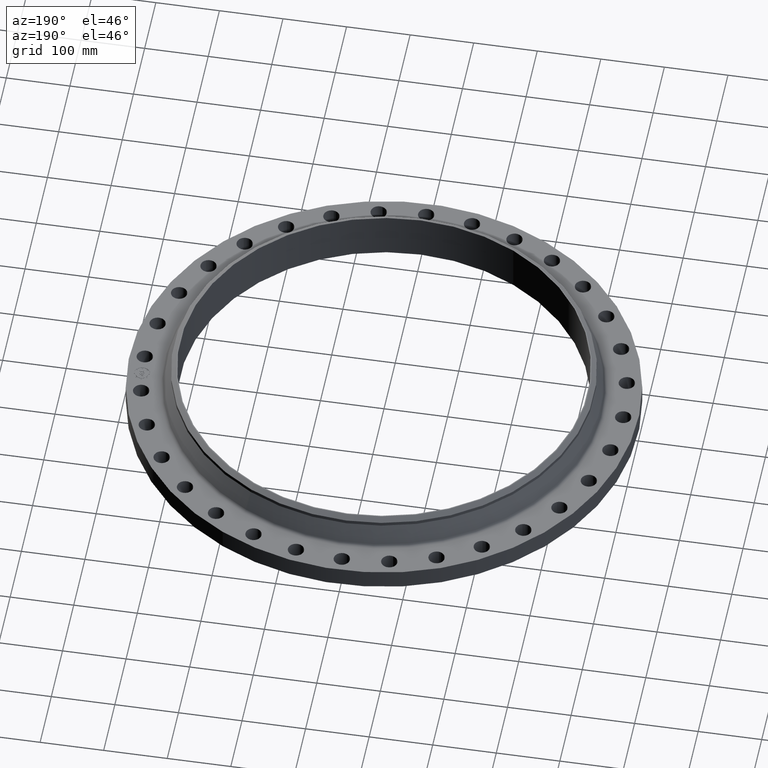
[diagram: clean part render]
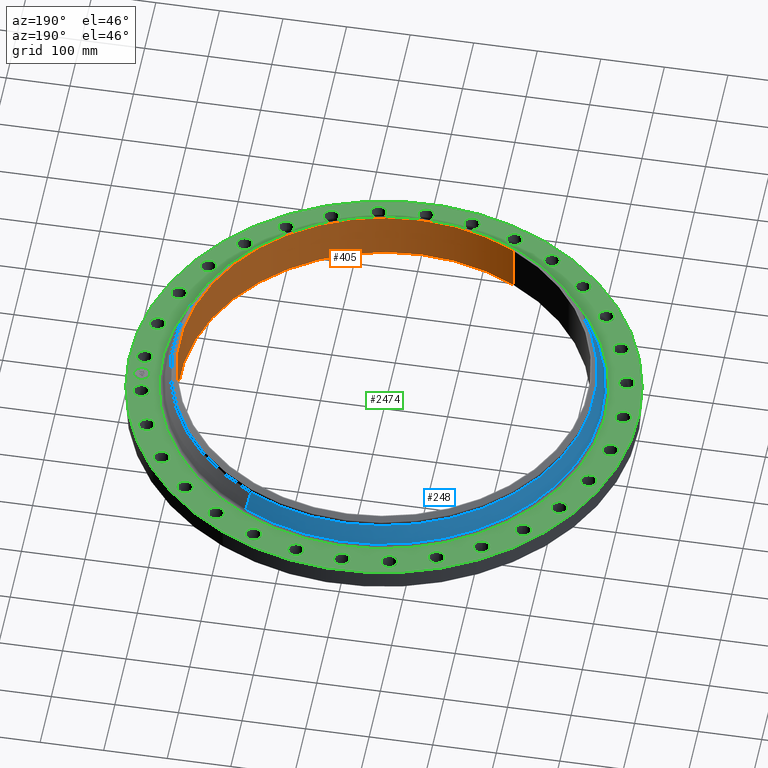
[diagram: same view with three faces highlighted in distinct colors, each labeled with its STEP entity id]
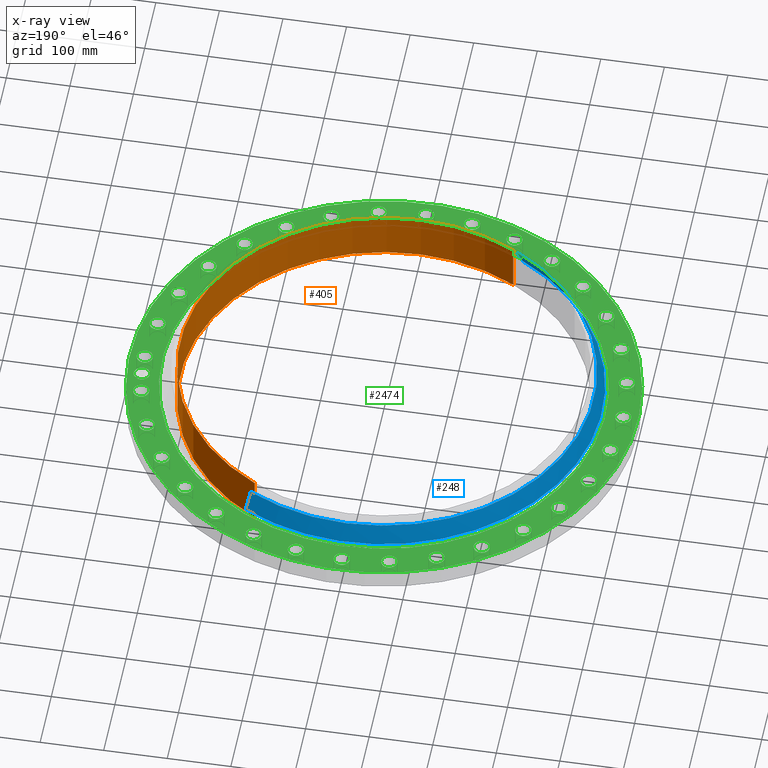
[diagram: x-ray of the same camera — body ghosted, the three highlighted faces saturated]
A machine part, auxiliary view with three faces highlighted in distinct colors.
The next image is the same camera in x-ray (body ghosted, the three faces saturated) — at least one of them is partly hidden behind the body in this view.
Their STEP definitions:

[orange] entity #405 — the highlighted cylindrical surface (partial cylindrical patch) has radius 320.675 mm, axis along (0, 0, -1).
#355=AXIS2_PLACEMENT_3D('Circle Axis2P3D',#353,#354,$) ;
#366=AXIS2_PLACEMENT_3D('Cylinder Axis2P3D',#363,#364,#365) ;
#396=AXIS2_PLACEMENT_3D('Circle Axis2P3D',#394,#395,$) ;
#348=CARTESIAN_POINT('Vertex',(-6.0527474249,-11.0794798439,3.00000000001)) ;
#350=CARTESIAN_POINT('Vertex',(6.0527474249,11.0794798439,3.00000000001)) ;
#353=CARTESIAN_POINT('Axis2P3D Location',(0.,-1.39870617276E-015,3.00000000001)) ;
#363=CARTESIAN_POINT('Axis2P3D Location',(0.,0.,1.55000000001)) ;
#368=CARTESIAN_POINT('Line Origine',(-6.0527474249,-11.0794798439,1.50000000001)) ;
#372=CARTESIAN_POINT('Vertex',(-6.0527474249,-11.0794798439,-2.12603338259E-014)) ;
#379=CARTESIAN_POINT('Vertex',(6.0527474249,11.0794798439,-2.12603338259E-014)) ;
#382=CARTESIAN_POINT('Line Origine',(6.0527474249,11.0794798439,1.50000000001)) ;
#394=CARTESIAN_POINT('Axis2P3D Location',(0.,0.,-2.12603338259E-014)) ;
#354=DIRECTION('Axis2P3D Direction',(0.,-0.,-0.0393700787402)) ;
#364=DIRECTION('Axis2P3D Direction',(0.,0.,-0.0393700787402)) ;
#365=DIRECTION('Axis2P3D XDirection',(0.0188750212049,0.0345504945626,0.)) ;
#369=DIRECTION('Vector Direction',(0.,0.,-0.0393700787402)) ;
#383=DIRECTION('Vector Direction',(0.,0.,-0.0393700787402)) ;
#395=DIRECTION('Axis2P3D Direction',(0.,0.,-0.0393700787402)) ;
#370=VECTOR('Line Direction',#369,0.0393700787402) ;
#384=VECTOR('Line Direction',#383,0.0393700787402) ;
#400=ORIENTED_EDGE('',*,*,#386,.T.) ;
#401=ORIENTED_EDGE('',*,*,#398,.T.) ;
#402=ORIENTED_EDGE('',*,*,#374,.F.) ;
#403=ORIENTED_EDGE('',*,*,#357,.F.) ;
#405=ADVANCED_FACE('PartBody',(#404),#367,.F.) ;
#356=CIRCLE('generated circle',#355,12.6250000001) ;
#397=CIRCLE('generated circle',#396,12.6250000001) ;
#367=CYLINDRICAL_SURFACE('generated cylinder',#366,12.6250000001) ;
#357=EDGE_CURVE('',#351,#349,#356,.T.) ;
#374=EDGE_CURVE('',#349,#373,#371,.T.) ;
#386=EDGE_CURVE('',#351,#380,#385,.T.) ;
#398=EDGE_CURVE('',#380,#373,#397,.T.) ;
#399=EDGE_LOOP('',(#400,#401,#402,#403)) ;
#404=FACE_OUTER_BOUND('',#399,.T.) ;
#371=LINE('Line',#368,#370) ;
#385=LINE('Line',#382,#384) ;
#349=VERTEX_POINT('',#348) ;
#351=VERTEX_POINT('',#350) ;
#373=VERTEX_POINT('',#372) ;
#380=VERTEX_POINT('',#379) ;

[blue] entity #248 — the highlighted conical surface has half-angle 23.917 deg.
#196=AXIS2_PLACEMENT_3D('Circle Axis2P3D',#194,#195,$) ;
#209=AXIS2_PLACEMENT_3D('Cone Axis2P3D',#206,#207,#208) ;
#239=AXIS2_PLACEMENT_3D('Circle Axis2P3D',#237,#238,$) ;
#167=CARTESIAN_POINT('Vertex',(6.47180196511,11.8465540345,1.39864782273)) ;
#174=CARTESIAN_POINT('Vertex',(-6.47180196511,-11.8465540345,1.39864782273)) ;
#194=CARTESIAN_POINT('Axis2P3D Location',(0.,0.,1.39864782273)) ;
#206=CARTESIAN_POINT('Axis2P3D Location',(0.,0.,2.52398984383)) ;
#211=CARTESIAN_POINT('Line Origine',(6.35216698349,11.6275636696,1.96131883328)) ;
#215=CARTESIAN_POINT('Vertex',(6.23253200188,11.4085733046,2.52398984383)) ;
#222=CARTESIAN_POINT('Vertex',(-6.23253200188,-11.4085733046,2.52398984383)) ;
#225=CARTESIAN_POINT('Line Origine',(-6.35216698349,-11.6275636696,1.96131883328)) ;
#237=CARTESIAN_POINT('Axis2P3D Location',(0.,0.,2.52398984383)) ;
#195=DIRECTION('Axis2P3D Direction',(0.,0.,-0.0393700787402)) ;
#207=DIRECTION('Axis2P3D Direction',(0.,0.,-0.0393700787402)) ;
#208=DIRECTION('Axis2P3D XDirection',(-0.0188750212049,-0.0345504945626,0.)) ;
#212=DIRECTION('Vector Direction',(0.00765209798064,0.0140070713989,-0.0359895880405)) ;
#226=DIRECTION('Vector Direction',(-0.00765209798064,-0.0140070713989,-0.0359895880405)) ;
#238=DIRECTION('Axis2P3D Direction',(0.,0.,-0.0393700787402)) ;
#213=VECTOR('Line Direction',#212,0.0393700787402) ;
#227=VECTOR('Line Direction',#226,0.0393700787402) ;
#243=ORIENTED_EDGE('',*,*,#198,.F.) ;
#244=ORIENTED_EDGE('',*,*,#229,.T.) ;
#245=ORIENTED_EDGE('',*,*,#241,.T.) ;
#246=ORIENTED_EDGE('',*,*,#217,.F.) ;
#248=ADVANCED_FACE('PartBody',(#247),#210,.T.) ;
#197=CIRCLE('generated circle',#196,13.499076382) ;
#240=CIRCLE('generated circle',#239,13.0000000001) ;
#210=CONICAL_SURFACE('Cone',#209,13.0000000001,0.417425885319) ;
#198=EDGE_CURVE('',#175,#168,#197,.T.) ;
#217=EDGE_CURVE('',#168,#216,#214,.F.) ;
#229=EDGE_CURVE('',#175,#223,#228,.F.) ;
#241=EDGE_CURVE('',#223,#216,#240,.T.) ;
#242=EDGE_LOOP('',(#243,#244,#245,#246)) ;
#247=FACE_OUTER_BOUND('',#242,.T.) ;
#214=LINE('Line',#211,#213) ;
#228=LINE('Line',#225,#227) ;
#168=VERTEX_POINT('',#167) ;
#175=VERTEX_POINT('',#174) ;
#216=VERTEX_POINT('',#215) ;
#223=VERTEX_POINT('',#222) ;

[green] entity #2474 — the highlighted planar face has unit normal (0, 0, -1).
#65=AXIS2_PLACEMENT_3D('Circle Axis2P3D',#63,#64,$) ;
#82=AXIS2_PLACEMENT_3D('Circle Axis2P3D',#80,#81,$) ;
#115=AXIS2_PLACEMENT_3D('Circle Axis2P3D',#113,#114,$) ;
#139=AXIS2_PLACEMENT_3D('Circle Axis2P3D',#137,#138,$) ;
#156=AXIS2_PLACEMENT_3D('Circle Axis2P3D',#154,#155,$) ;
#191=AXIS2_PLACEMENT_3D('Circle Axis2P3D',#189,#190,$) ;
#1003=AXIS2_PLACEMENT_3D('Circle Axis2P3D',#1001,#1002,$) ;
#1015=AXIS2_PLACEMENT_3D('Circle Axis2P3D',#1013,#1014,$) ;
#1046=AXIS2_PLACEMENT_3D('Circle Axis2P3D',#1044,#1045,$) ;
#1058=AXIS2_PLACEMENT_3D('Circle Axis2P3D',#1056,#1057,$) ;
#1089=AXIS2_PLACEMENT_3D('Circle Axis2P3D',#1087,#1088,$) ;
#1101=AXIS2_PLACEMENT_3D('Circle Axis2P3D',#1099,#1100,$) ;
#1132=AXIS2_PLACEMENT_3D('Circle Axis2P3D',#1130,#1131,$) ;
#1144=AXIS2_PLACEMENT_3D('Circle Axis2P3D',#1142,#1143,$) ;
#1175=AXIS2_PLACEMENT_3D('Circle Axis2P3D',#1173,#1174,$) ;
#1187=AXIS2_PLACEMENT_3D('Circle Axis2P3D',#1185,#1186,$) ;
#1218=AXIS2_PLACEMENT_3D('Circle Axis2P3D',#1216,#1217,$) ;
#1230=AXIS2_PLACEMENT_3D('Circle Axis2P3D',#1228,#1229,$) ;
#1261=AXIS2_PLACEMENT_3D('Circle Axis2P3D',#1259,#1260,$) ;
#1273=AXIS2_PLACEMENT_3D('Circle Axis2P3D',#1271,#1272,$) ;
#1304=AXIS2_PLACEMENT_3D('Circle Axis2P3D',#1302,#1303,$) ;
#1316=AXIS2_PLACEMENT_3D('Circle Axis2P3D',#1314,#1315,$) ;
#1347=AXIS2_PLACEMENT_3D('Circle Axis2P3D',#1345,#1346,$) ;
#1359=AXIS2_PLACEMENT_3D('Circle Axis2P3D',#1357,#1358,$) ;
#1390=AXIS2_PLACEMENT_3D('Circle Axis2P3D',#1388,#1389,$) ;
#1402=AXIS2_PLACEMENT_3D('Circle Axis2P3D',#1400,#1401,$) ;
#1433=AXIS2_PLACEMENT_3D('Circle Axis2P3D',#1431,#1432,$) ;
#1445=AXIS2_PLACEMENT_3D('Circle Axis2P3D',#1443,#1444,$) ;
#1476=AXIS2_PLACEMENT_3D('Circle Axis2P3D',#1474,#1475,$) ;
#1488=AXIS2_PLACEMENT_3D('Circle Axis2P3D',#1486,#1487,$) ;
#1519=AXIS2_PLACEMENT_3D('Circle Axis2P3D',#1517,#1518,$) ;
#1531=AXIS2_PLACEMENT_3D('Circle Axis2P3D',#1529,#1530,$) ;
#1562=AXIS2_PLACEMENT_3D('Circle Axis2P3D',#1560,#1561,$) ;
#1574=AXIS2_PLACEMENT_3D('Circle Axis2P3D',#1572,#1573,$) ;
#1605=AXIS2_PLACEMENT_3D('Circle Axis2P3D',#1603,#1604,$) ;
#1617=AXIS2_PLACEMENT_3D('Circle Axis2P3D',#1615,#1616,$) ;
#1648=AXIS2_PLACEMENT_3D('Circle Axis2P3D',#1646,#1647,$) ;
#1660=AXIS2_PLACEMENT_3D('Circle Axis2P3D',#1658,#1659,$) ;
#1691=AXIS2_PLACEMENT_3D('Circle Axis2P3D',#1689,#1690,$) ;
#1703=AXIS2_PLACEMENT_3D('Circle Axis2P3D',#1701,#1702,$) ;
#1734=AXIS2_PLACEMENT_3D('Circle Axis2P3D',#1732,#1733,$) ;
#1746=AXIS2_PLACEMENT_3D('Circle Axis2P3D',#1744,#1745,$) ;
#1777=AXIS2_PLACEMENT_3D('Circle Axis2P3D',#1775,#1776,$) ;
#1789=AXIS2_PLACEMENT_3D('Circle Axis2P3D',#1787,#1788,$) ;
#1820=AXIS2_PLACEMENT_3D('Circle Axis2P3D',#1818,#1819,$) ;
#1832=AXIS2_PLACEMENT_3D('Circle Axis2P3D',#1830,#1831,$) ;
#1863=AXIS2_PLACEMENT_3D('Circle Axis2P3D',#1861,#1862,$) ;
#1875=AXIS2_PLACEMENT_3D('Circle Axis2P3D',#1873,#1874,$) ;
#1906=AXIS2_PLACEMENT_3D('Circle Axis2P3D',#1904,#1905,$) ;
#1918=AXIS2_PLACEMENT_3D('Circle Axis2P3D',#1916,#1917,$) ;
#1949=AXIS2_PLACEMENT_3D('Circle Axis2P3D',#1947,#1948,$) ;
#1961=AXIS2_PLACEMENT_3D('Circle Axis2P3D',#1959,#1960,$) ;
#1992=AXIS2_PLACEMENT_3D('Circle Axis2P3D',#1990,#1991,$) ;
#2004=AXIS2_PLACEMENT_3D('Circle Axis2P3D',#2002,#2003,$) ;
#2035=AXIS2_PLACEMENT_3D('Circle Axis2P3D',#2033,#2034,$) ;
#2047=AXIS2_PLACEMENT_3D('Circle Axis2P3D',#2045,#2046,$) ;
#2078=AXIS2_PLACEMENT_3D('Circle Axis2P3D',#2076,#2077,$) ;
#2090=AXIS2_PLACEMENT_3D('Circle Axis2P3D',#2088,#2089,$) ;
#2121=AXIS2_PLACEMENT_3D('Circle Axis2P3D',#2119,#2120,$) ;
#2133=AXIS2_PLACEMENT_3D('Circle Axis2P3D',#2131,#2132,$) ;
#2164=AXIS2_PLACEMENT_3D('Circle Axis2P3D',#2162,#2163,$) ;
#2176=AXIS2_PLACEMENT_3D('Circle Axis2P3D',#2174,#2175,$) ;
#2207=AXIS2_PLACEMENT_3D('Circle Axis2P3D',#2205,#2206,$) ;
#2219=AXIS2_PLACEMENT_3D('Circle Axis2P3D',#2217,#2218,$) ;
#2250=AXIS2_PLACEMENT_3D('Circle Axis2P3D',#2248,#2249,$) ;
#2262=AXIS2_PLACEMENT_3D('Circle Axis2P3D',#2260,#2261,$) ;
#2293=AXIS2_PLACEMENT_3D('Circle Axis2P3D',#2291,#2292,$) ;
#2305=AXIS2_PLACEMENT_3D('Circle Axis2P3D',#2303,#2304,$) ;
#2318=AXIS2_PLACEMENT_3D('Plane Axis2P3D',#2315,#2316,#2317) ;
#2458=AXIS2_PLACEMENT_3D('Circle Axis2P3D',#2456,#2457,$) ;
#2467=AXIS2_PLACEMENT_3D('Circle Axis2P3D',#2465,#2466,$) ;
#46=CARTESIAN_POINT('Vertex',(14.3762087191,0.239712769303,1.25000000001)) ;
#60=CARTESIAN_POINT('Vertex',(15.253791281,-0.239712769303,1.25000000001)) ;
#63=CARTESIAN_POINT('Axis2P3D Location',(14.8150000001,0.,1.25000000001)) ;
#80=CARTESIAN_POINT('Axis2P3D Location',(14.8150000001,0.,1.25000000001)) ;
#110=CARTESIAN_POINT('Vertex',(-7.55095223305,-13.8219253498,1.25000000001)) ;
#113=CARTESIAN_POINT('Axis2P3D Location',(0.,0.,1.25000000001)) ;
#117=CARTESIAN_POINT('Vertex',(7.55095223305,13.8219253498,1.25000000001)) ;
#137=CARTESIAN_POINT('Axis2P3D Location',(0.,0.,1.25000000001)) ;
#154=CARTESIAN_POINT('Axis2P3D Location',(0.,0.,1.25000000001)) ;
#158=CARTESIAN_POINT('Vertex',(6.58136694556,12.0471113859,1.25000000001)) ;
#160=CARTESIAN_POINT('Vertex',(-6.58136694556,-12.0471113859,1.25000000001)) ;
#189=CARTESIAN_POINT('Axis2P3D Location',(0.,0.,1.25000000001)) ;
#991=CARTESIAN_POINT('Vertex',(-14.1467395411,2.56955243273,1.25000000001)) ;
#998=CARTESIAN_POINT('Vertex',(-14.9139283174,3.21097380864,1.25000000001)) ;
#1001=CARTESIAN_POINT('Axis2P3D Location',(-14.5303339292,2.89026312068,1.25000000001)) ;
#1013=CARTESIAN_POINT('Axis2P3D Location',(-14.5303339292,2.89026312068,1.25000000001)) ;
#1034=CARTESIAN_POINT('Vertex',(13.373619096,-5.28007117579,1.25000000001)) ;
#1041=CARTESIAN_POINT('Vertex',(14.0009314524,-6.05883892524,1.25000000001)) ;
#1044=CARTESIAN_POINT('Axis2P3D Location',(13.6872752742,-5.66945505051,1.25000000001)) ;
#1056=CARTESIAN_POINT('Axis2P3D Location',(13.6872752742,-5.66945505051,1.25000000001)) ;
#1077=CARTESIAN_POINT('Vertex',(-13.373619096,5.28007117579,1.25000000001)) ;
#1084=CARTESIAN_POINT('Vertex',(-14.0009314524,6.05883892524,1.25000000001)) ;
#1087=CARTESIAN_POINT('Axis2P3D Location',(-13.6872752742,5.66945505051,1.25000000001)) ;
#1099=CARTESIAN_POINT('Axis2P3D Location',(-13.6872752742,5.66945505051,1.25000000001)) ;
#1120=CARTESIAN_POINT('Vertex',(12.0865579692,-7.78767974466,1.25000000001)) ;
#1127=CARTESIAN_POINT('Vertex',(12.5498866435,-8.67386625978,1.25000000001)) ;
#1130=CARTESIAN_POINT('Axis2P3D Location',(12.3182223063,-8.23077300222,1.25000000001)) ;
#1142=CARTESIAN_POINT('Axis2P3D Location',(12.3182223063,-8.23077300222,1.25000000001)) ;
#1163=CARTESIAN_POINT('Vertex',(-12.0865579692,7.78767974466,1.25000000001)) ;
#1170=CARTESIAN_POINT('Vertex',(-12.5498866435,8.67386625978,1.25000000001)) ;
#1173=CARTESIAN_POINT('Axis2P3D Location',(-12.3182223063,8.23077300222,1.25000000001)) ;
#1185=CARTESIAN_POINT('Axis2P3D Location',(-12.3182223063,8.23077300222,1.25000000001)) ;
#1206=CARTESIAN_POINT('Vertex',(10.3350171977,-9.99601214833,1.25000000001)) ;
#1213=CARTESIAN_POINT('Vertex',(10.6165567289,-10.9555617783,1.25000000001)) ;
#1216=CARTESIAN_POINT('Axis2P3D Location',(10.4757869633,-10.4757869633,1.25000000001)) ;
#1228=CARTESIAN_POINT('Axis2P3D Location',(10.4757869633,-10.4757869633,1.25000000001)) ;
#1249=CARTESIAN_POINT('Vertex',(-10.3350171977,9.99601214833,1.25000000001)) ;
#1256=CARTESIAN_POINT('Vertex',(-10.6165567289,10.9555617783,1.25000000001)) ;
#1259=CARTESIAN_POINT('Axis2P3D Location',(-10.4757869633,10.4757869633,1.25000000001)) ;
#1271=CARTESIAN_POINT('Axis2P3D Location',(-10.4757869633,10.4757869633,1.25000000001)) ;
#1292=CARTESIAN_POINT('Vertex',(8.18630751137,-11.820203411,1.25000000001)) ;
#1299=CARTESIAN_POINT('Vertex',(8.27523849306,-12.8162412017,1.25000000001)) ;
#1302=CARTESIAN_POINT('Axis2P3D Location',(8.23077300222,-12.3182223063,1.25000000001)) ;
#1314=CARTESIAN_POINT('Axis2P3D Location',(8.23077300222,-12.3182223063,1.25000000001)) ;
#1335=CARTESIAN_POINT('Vertex',(-8.18630751137,11.820203411,1.25000000001)) ;
#1342=CARTESIAN_POINT('Vertex',(-8.27523849306,12.8162412017,1.25000000001)) ;
#1345=CARTESIAN_POINT('Axis2P3D Location',(-8.23077300222,12.3182223063,1.25000000001)) ;
#1357=CARTESIAN_POINT('Axis2P3D Location',(-8.23077300222,12.3182223063,1.25000000001)) ;
#1378=CARTESIAN_POINT('Vertex',(5.72300261827,-13.1901508854,1.25000000001)) ;
#1385=CARTESIAN_POINT('Vertex',(5.61590748276,-14.1843996631,1.25000000001)) ;
#1388=CARTESIAN_POINT('Axis2P3D Location',(5.66945505051,-13.6872752742,1.25000000001)) ;
#1400=CARTESIAN_POINT('Axis2P3D Location',(5.66945505051,-13.6872752742,1.25000000001)) ;
#1421=CARTESIAN_POINT('Vertex',(-5.72300261827,13.1901508854,1.25000000001)) ;
#1428=CARTESIAN_POINT('Vertex',(-5.61590748276,14.1843996631,1.25000000001)) ;
#1431=CARTESIAN_POINT('Axis2P3D Location',(-5.66945505051,13.6872752742,1.25000000001)) ;
#1443=CARTESIAN_POINT('Axis2P3D Location',(-5.66945505051,13.6872752742,1.25000000001)) ;
#1464=CARTESIAN_POINT('Vertex',(3.03976594404,-14.0532082584,1.25000000001)) ;
#1471=CARTESIAN_POINT('Vertex',(2.74076029732,-15.0074596001,1.25000000001)) ;
#1474=CARTESIAN_POINT('Axis2P3D Location',(2.89026312068,-14.5303339292,1.25000000001)) ;
#1486=CARTESIAN_POINT('Axis2P3D Location',(2.89026312068,-14.5303339292,1.25000000001)) ;
#1507=CARTESIAN_POINT('Vertex',(-3.03976594404,14.0532082584,1.25000000001)) ;
#1514=CARTESIAN_POINT('Vertex',(-2.74076029732,15.0074596001,1.25000000001)) ;
#1517=CARTESIAN_POINT('Axis2P3D Location',(-2.89026312068,14.5303339292,1.25000000001)) ;
#1529=CARTESIAN_POINT('Axis2P3D Location',(-2.89026312068,14.5303339292,1.25000000001)) ;
#1550=CARTESIAN_POINT('Vertex',(0.239712769303,-14.3762087191,1.25000000001)) ;
#1557=CARTESIAN_POINT('Vertex',(-0.239712769303,-15.253791281,1.25000000001)) ;
#1560=CARTESIAN_POINT('Axis2P3D Location',(-1.33077275994E-015,-14.8150000001,1.25000000001)) ;
#1572=CARTESIAN_POINT('Axis2P3D Location',(-1.33077275994E-015,-14.8150000001,1.25000000001)) ;
#1593=CARTESIAN_POINT('Vertex',(-0.239712769303,14.3762087191,1.25000000001)) ;
#1600=CARTESIAN_POINT('Vertex',(0.239712769303,15.253791281,1.25000000001)) ;
#1603=CARTESIAN_POINT('Axis2P3D Location',(-2.72147134942E-015,14.8150000001,1.25000000001)) ;
#1615=CARTESIAN_POINT('Axis2P3D Location',(-2.72147134942E-015,14.8150000001,1.25000000001)) ;
#1636=CARTESIAN_POINT('Vertex',(-2.56955243273,-14.1467395411,1.25000000001)) ;
#1643=CARTESIAN_POINT('Vertex',(-3.21097380864,-14.9139283174,1.25000000001)) ;
#1646=CARTESIAN_POINT('Axis2P3D Location',(-2.89026312068,-14.5303339292,1.25000000001)) ;
#1658=CARTESIAN_POINT('Axis2P3D Location',(-2.89026312068,-14.5303339292,1.25000000001)) ;
#1679=CARTESIAN_POINT('Vertex',(2.56955243273,14.1467395411,1.25000000001)) ;
#1686=CARTESIAN_POINT('Vertex',(3.21097380864,14.9139283174,1.25000000001)) ;
#1689=CARTESIAN_POINT('Axis2P3D Location',(2.89026312068,14.5303339292,1.25000000001)) ;
#1701=CARTESIAN_POINT('Axis2P3D Location',(2.89026312068,14.5303339292,1.25000000001)) ;
#1722=CARTESIAN_POINT('Vertex',(-5.28007117579,-13.373619096,1.25000000001)) ;
#1729=CARTESIAN_POINT('Vertex',(-6.05883892524,-14.0009314524,1.25000000001)) ;
#1732=CARTESIAN_POINT('Axis2P3D Location',(-5.66945505051,-13.6872752742,1.25000000001)) ;
#1744=CARTESIAN_POINT('Axis2P3D Location',(-5.66945505051,-13.6872752742,1.25000000001)) ;
#1765=CARTESIAN_POINT('Vertex',(5.28007117579,13.373619096,1.25000000001)) ;
#1772=CARTESIAN_POINT('Vertex',(6.05883892524,14.0009314524,1.25000000001)) ;
#1775=CARTESIAN_POINT('Axis2P3D Location',(5.66945505051,13.6872752742,1.25000000001)) ;
#1787=CARTESIAN_POINT('Axis2P3D Location',(5.66945505051,13.6872752742,1.25000000001)) ;
#1808=CARTESIAN_POINT('Vertex',(-7.78767974466,-12.0865579692,1.25000000001)) ;
#1815=CARTESIAN_POINT('Vertex',(-8.67386625978,-12.5498866435,1.25000000001)) ;
#1818=CARTESIAN_POINT('Axis2P3D Location',(-8.23077300222,-12.3182223063,1.25000000001)) ;
#1830=CARTESIAN_POINT('Axis2P3D Location',(-8.23077300222,-12.3182223063,1.25000000001)) ;
#1851=CARTESIAN_POINT('Vertex',(7.78767974466,12.0865579692,1.25000000001)) ;
#1858=CARTESIAN_POINT('Vertex',(8.67386625978,12.5498866435,1.25000000001)) ;
#1861=CARTESIAN_POINT('Axis2P3D Location',(8.23077300222,12.3182223063,1.25000000001)) ;
#1873=CARTESIAN_POINT('Axis2P3D Location',(8.23077300222,12.3182223063,1.25000000001)) ;
#1894=CARTESIAN_POINT('Vertex',(-9.99601214833,-10.3350171977,1.25000000001)) ;
#1901=CARTESIAN_POINT('Vertex',(-10.9555617783,-10.6165567289,1.25000000001)) ;
#1904=CARTESIAN_POINT('Axis2P3D Location',(-10.4757869633,-10.4757869633,1.25000000001)) ;
#1916=CARTESIAN_POINT('Axis2P3D Location',(-10.4757869633,-10.4757869633,1.25000000001)) ;
#1937=CARTESIAN_POINT('Vertex',(9.99601214833,10.3350171977,1.25000000001)) ;
#1944=CARTESIAN_POINT('Vertex',(10.9555617783,10.6165567289,1.25000000001)) ;
#1947=CARTESIAN_POINT('Axis2P3D Location',(10.4757869633,10.4757869633,1.25000000001)) ;
#1959=CARTESIAN_POINT('Axis2P3D Location',(10.4757869633,10.4757869633,1.25000000001)) ;
#1980=CARTESIAN_POINT('Vertex',(-11.820203411,-8.18630751137,1.25000000001)) ;
#1987=CARTESIAN_POINT('Vertex',(-12.8162412017,-8.27523849306,1.25000000001)) ;
#1990=CARTESIAN_POINT('Axis2P3D Location',(-12.3182223063,-8.23077300222,1.25000000001)) ;
#2002=CARTESIAN_POINT('Axis2P3D Location',(-12.3182223063,-8.23077300222,1.25000000001)) ;
#2023=CARTESIAN_POINT('Vertex',(11.820203411,8.18630751137,1.25000000001)) ;
#2030=CARTESIAN_POINT('Vertex',(12.8162412017,8.27523849306,1.25000000001)) ;
#2033=CARTESIAN_POINT('Axis2P3D Location',(12.3182223063,8.23077300222,1.25000000001)) ;
#2045=CARTESIAN_POINT('Axis2P3D Location',(12.3182223063,8.23077300222,1.25000000001)) ;
#2066=CARTESIAN_POINT('Vertex',(-13.1901508854,-5.72300261827,1.25000000001)) ;
#2073=CARTESIAN_POINT('Vertex',(-14.1843996631,-5.61590748276,1.25000000001)) ;
#2076=CARTESIAN_POINT('Axis2P3D Location',(-13.6872752742,-5.66945505051,1.25000000001)) ;
#2088=CARTESIAN_POINT('Axis2P3D Location',(-13.6872752742,-5.66945505051,1.25000000001)) ;
#2109=CARTESIAN_POINT('Vertex',(13.1901508854,5.72300261827,1.25000000001)) ;
#2116=CARTESIAN_POINT('Vertex',(14.1843996631,5.61590748276,1.25000000001)) ;
#2119=CARTESIAN_POINT('Axis2P3D Location',(13.6872752742,5.66945505051,1.25000000001)) ;
#2131=CARTESIAN_POINT('Axis2P3D Location',(13.6872752742,5.66945505051,1.25000000001)) ;
#2152=CARTESIAN_POINT('Vertex',(-14.0532082584,-3.03976594404,1.25000000001)) ;
#2159=CARTESIAN_POINT('Vertex',(-15.0074596001,-2.74076029732,1.25000000001)) ;
#2162=CARTESIAN_POINT('Axis2P3D Location',(-14.5303339292,-2.89026312068,1.25000000001)) ;
#2174=CARTESIAN_POINT('Axis2P3D Location',(-14.5303339292,-2.89026312068,1.25000000001)) ;
#2195=CARTESIAN_POINT('Vertex',(14.0532082584,3.03976594404,1.25000000001)) ;
#2202=CARTESIAN_POINT('Vertex',(15.0074596001,2.74076029732,1.25000000001)) ;
#2205=CARTESIAN_POINT('Axis2P3D Location',(14.5303339292,2.89026312068,1.25000000001)) ;
#2217=CARTESIAN_POINT('Axis2P3D Location',(14.5303339292,2.89026312068,1.25000000001)) ;
#2238=CARTESIAN_POINT('Vertex',(-14.3762087191,-0.239712769303,1.25000000001)) ;
#2245=CARTESIAN_POINT('Vertex',(-15.253791281,0.239712769303,1.25000000001)) ;
#2248=CARTESIAN_POINT('Axis2P3D Location',(-14.8150000001,-1.81431423294E-015,1.25000000001)) ;
#2260=CARTESIAN_POINT('Axis2P3D Location',(-14.8150000001,-1.81431423294E-015,1.25000000001)) ;
#2281=CARTESIAN_POINT('Vertex',(14.1467395411,-2.56955243273,1.25000000001)) ;
#2288=CARTESIAN_POINT('Vertex',(14.9139283174,-3.21097380864,1.25000000001)) ;
#2291=CARTESIAN_POINT('Axis2P3D Location',(14.5303339292,-2.89026312068,1.25000000001)) ;
#2303=CARTESIAN_POINT('Axis2P3D Location',(14.5303339292,-2.89026312068,1.25000000001)) ;
#2315=CARTESIAN_POINT('Axis2P3D Location',(0.,15.7500000001,1.25000000001)) ;
#2456=CARTESIAN_POINT('Axis2P3D Location',(14.7436617257,1.45212393399,1.25000000001)) ;
#2460=CARTESIAN_POINT('Vertex',(14.6946532679,1.94971515684,1.25000000001)) ;
#2462=CARTESIAN_POINT('Vertex',(14.7926701835,0.954532711135,1.25000000001)) ;
#2465=CARTESIAN_POINT('Axis2P3D Location',(14.7436617257,1.45212393399,1.25000000001)) ;
#64=DIRECTION('Axis2P3D Direction',(0.,-0.,-0.0393700787402)) ;
#81=DIRECTION('Axis2P3D Direction',(0.,-0.,-0.0393700787402)) ;
#114=DIRECTION('Axis2P3D Direction',(0.,0.,-0.0393700787402)) ;
#138=DIRECTION('Axis2P3D Direction',(0.,0.,-0.0393700787402)) ;
#155=DIRECTION('Axis2P3D Direction',(0.,0.,-0.0393700787402)) ;
#190=DIRECTION('Axis2P3D Direction',(0.,0.,-0.0393700787402)) ;
#1002=DIRECTION('Axis2P3D Direction',(0.,0.,-0.0393700787402)) ;
#1014=DIRECTION('Axis2P3D Direction',(0.,0.,-0.0393700787402)) ;
#1045=DIRECTION('Axis2P3D Direction',(0.,-0.,-0.0393700787402)) ;
#1057=DIRECTION('Axis2P3D Direction',(0.,-0.,-0.0393700787402)) ;
#1088=DIRECTION('Axis2P3D Direction',(0.,0.,-0.0393700787402)) ;
#1100=DIRECTION('Axis2P3D Direction',(0.,0.,-0.0393700787402)) ;
#1131=DIRECTION('Axis2P3D Direction',(0.,-0.,-0.0393700787402)) ;
#1143=DIRECTION('Axis2P3D Direction',(0.,-0.,-0.0393700787402)) ;
#1174=DIRECTION('Axis2P3D Direction',(0.,0.,-0.0393700787402)) ;
#1186=DIRECTION('Axis2P3D Direction',(0.,0.,-0.0393700787402)) ;
#1217=DIRECTION('Axis2P3D Direction',(0.,-0.,-0.0393700787402)) ;
#1229=DIRECTION('Axis2P3D Direction',(0.,-0.,-0.0393700787402)) ;
#1260=DIRECTION('Axis2P3D Direction',(0.,0.,-0.0393700787402)) ;
#1272=DIRECTION('Axis2P3D Direction',(0.,0.,-0.0393700787402)) ;
#1303=DIRECTION('Axis2P3D Direction',(0.,-0.,-0.0393700787402)) ;
#1315=DIRECTION('Axis2P3D Direction',(0.,-0.,-0.0393700787402)) ;
#1346=DIRECTION('Axis2P3D Direction',(0.,0.,-0.0393700787402)) ;
#1358=DIRECTION('Axis2P3D Direction',(0.,0.,-0.0393700787402)) ;
#1389=DIRECTION('Axis2P3D Direction',(0.,-0.,-0.0393700787402)) ;
#1401=DIRECTION('Axis2P3D Direction',(0.,-0.,-0.0393700787402)) ;
#1432=DIRECTION('Axis2P3D Direction',(0.,0.,-0.0393700787402)) ;
#1444=DIRECTION('Axis2P3D Direction',(0.,0.,-0.0393700787402)) ;
#1475=DIRECTION('Axis2P3D Direction',(0.,-0.,-0.0393700787402)) ;
#1487=DIRECTION('Axis2P3D Direction',(0.,-0.,-0.0393700787402)) ;
#1518=DIRECTION('Axis2P3D Direction',(0.,0.,-0.0393700787402)) ;
#1530=DIRECTION('Axis2P3D Direction',(0.,0.,-0.0393700787402)) ;
#1561=DIRECTION('Axis2P3D Direction',(0.,-0.,-0.0393700787402)) ;
#1573=DIRECTION('Axis2P3D Direction',(0.,-0.,-0.0393700787402)) ;
#1604=DIRECTION('Axis2P3D Direction',(0.,0.,-0.0393700787402)) ;
#1616=DIRECTION('Axis2P3D Direction',(0.,0.,-0.0393700787402)) ;
#1647=DIRECTION('Axis2P3D Direction',(-0.,0.,-0.0393700787402)) ;
#1659=DIRECTION('Axis2P3D Direction',(-0.,0.,-0.0393700787402)) ;
#1690=DIRECTION('Axis2P3D Direction',(0.,0.,-0.0393700787402)) ;
#1702=DIRECTION('Axis2P3D Direction',(0.,0.,-0.0393700787402)) ;
#1733=DIRECTION('Axis2P3D Direction',(-0.,0.,-0.0393700787402)) ;
#1745=DIRECTION('Axis2P3D Direction',(-0.,0.,-0.0393700787402)) ;
#1776=DIRECTION('Axis2P3D Direction',(0.,0.,-0.0393700787402)) ;
#1788=DIRECTION('Axis2P3D Direction',(0.,0.,-0.0393700787402)) ;
#1819=DIRECTION('Axis2P3D Direction',(-0.,0.,-0.0393700787402)) ;
#1831=DIRECTION('Axis2P3D Direction',(-0.,0.,-0.0393700787402)) ;
#1862=DIRECTION('Axis2P3D Direction',(0.,0.,-0.0393700787402)) ;
#1874=DIRECTION('Axis2P3D Direction',(0.,0.,-0.0393700787402)) ;
#1905=DIRECTION('Axis2P3D Direction',(-0.,0.,-0.0393700787402)) ;
#1917=DIRECTION('Axis2P3D Direction',(-0.,0.,-0.0393700787402)) ;
#1948=DIRECTION('Axis2P3D Direction',(0.,0.,-0.0393700787402)) ;
#1960=DIRECTION('Axis2P3D Direction',(0.,0.,-0.0393700787402)) ;
#1991=DIRECTION('Axis2P3D Direction',(-0.,0.,-0.0393700787402)) ;
#2003=DIRECTION('Axis2P3D Direction',(-0.,0.,-0.0393700787402)) ;
#2034=DIRECTION('Axis2P3D Direction',(0.,0.,-0.0393700787402)) ;
#2046=DIRECTION('Axis2P3D Direction',(0.,0.,-0.0393700787402)) ;
#2077=DIRECTION('Axis2P3D Direction',(-0.,0.,-0.0393700787402)) ;
#2089=DIRECTION('Axis2P3D Direction',(-0.,0.,-0.0393700787402)) ;
#2120=DIRECTION('Axis2P3D Direction',(0.,0.,-0.0393700787402)) ;
#2132=DIRECTION('Axis2P3D Direction',(0.,0.,-0.0393700787402)) ;
#2163=DIRECTION('Axis2P3D Direction',(-0.,0.,-0.0393700787402)) ;
#2175=DIRECTION('Axis2P3D Direction',(-0.,0.,-0.0393700787402)) ;
#2206=DIRECTION('Axis2P3D Direction',(0.,0.,-0.0393700787402)) ;
#2218=DIRECTION('Axis2P3D Direction',(0.,0.,-0.0393700787402)) ;
#2249=DIRECTION('Axis2P3D Direction',(-0.,0.,-0.0393700787402)) ;
#2261=DIRECTION('Axis2P3D Direction',(-0.,0.,-0.0393700787402)) ;
#2292=DIRECTION('Axis2P3D Direction',(0.,-0.,-0.0393700787402)) ;
#2304=DIRECTION('Axis2P3D Direction',(0.,-0.,-0.0393700787402)) ;
#2316=DIRECTION('Axis2P3D Direction',(0.,0.,-0.0393700787402)) ;
#2317=DIRECTION('Axis2P3D XDirection',(0.0393700787402,0.,0.)) ;
#2457=DIRECTION('Axis2P3D Direction',(0.,0.,-0.0393700787402)) ;
#2466=DIRECTION('Axis2P3D Direction',(0.,0.,-0.0393700787402)) ;
#2321=ORIENTED_EDGE('',*,*,#141,.F.) ;
#2322=ORIENTED_EDGE('',*,*,#119,.F.) ;
#2325=ORIENTED_EDGE('',*,*,#67,.T.) ;
#2326=ORIENTED_EDGE('',*,*,#84,.T.) ;
#2329=ORIENTED_EDGE('',*,*,#193,.T.) ;
#2330=ORIENTED_EDGE('',*,*,#162,.T.) ;
#2333=ORIENTED_EDGE('',*,*,#2307,.T.) ;
#2334=ORIENTED_EDGE('',*,*,#2295,.T.) ;
#2337=ORIENTED_EDGE('',*,*,#1060,.T.) ;
#2338=ORIENTED_EDGE('',*,*,#1048,.T.) ;
#2341=ORIENTED_EDGE('',*,*,#1146,.T.) ;
#2342=ORIENTED_EDGE('',*,*,#1134,.T.) ;
#2345=ORIENTED_EDGE('',*,*,#1232,.T.) ;
#2346=ORIENTED_EDGE('',*,*,#1220,.T.) ;
#2349=ORIENTED_EDGE('',*,*,#1318,.T.) ;
#2350=ORIENTED_EDGE('',*,*,#1306,.T.) ;
#2353=ORIENTED_EDGE('',*,*,#1404,.T.) ;
#2354=ORIENTED_EDGE('',*,*,#1392,.T.) ;
#2357=ORIENTED_EDGE('',*,*,#1490,.T.) ;
#2358=ORIENTED_EDGE('',*,*,#1478,.T.) ;
#2361=ORIENTED_EDGE('',*,*,#1576,.T.) ;
#2362=ORIENTED_EDGE('',*,*,#1564,.T.) ;
#2365=ORIENTED_EDGE('',*,*,#1662,.T.) ;
#2366=ORIENTED_EDGE('',*,*,#1650,.T.) ;
#2369=ORIENTED_EDGE('',*,*,#1748,.T.) ;
#2370=ORIENTED_EDGE('',*,*,#1736,.T.) ;
#2373=ORIENTED_EDGE('',*,*,#1834,.T.) ;
#2374=ORIENTED_EDGE('',*,*,#1822,.T.) ;
#2377=ORIENTED_EDGE('',*,*,#1920,.T.) ;
#2378=ORIENTED_EDGE('',*,*,#1908,.T.) ;
#2381=ORIENTED_EDGE('',*,*,#2006,.T.) ;
#2382=ORIENTED_EDGE('',*,*,#1994,.T.) ;
#2385=ORIENTED_EDGE('',*,*,#2092,.T.) ;
#2386=ORIENTED_EDGE('',*,*,#2080,.T.) ;
#2389=ORIENTED_EDGE('',*,*,#2178,.T.) ;
#2390=ORIENTED_EDGE('',*,*,#2166,.T.) ;
#2393=ORIENTED_EDGE('',*,*,#2264,.T.) ;
#2394=ORIENTED_EDGE('',*,*,#2252,.T.) ;
#2397=ORIENTED_EDGE('',*,*,#1017,.T.) ;
#2398=ORIENTED_EDGE('',*,*,#1005,.T.) ;
#2401=ORIENTED_EDGE('',*,*,#1103,.T.) ;
#2402=ORIENTED_EDGE('',*,*,#1091,.T.) ;
#2405=ORIENTED_EDGE('',*,*,#1189,.T.) ;
#2406=ORIENTED_EDGE('',*,*,#1177,.T.) ;
#2409=ORIENTED_EDGE('',*,*,#1275,.T.) ;
#2410=ORIENTED_EDGE('',*,*,#1263,.T.) ;
#2413=ORIENTED_EDGE('',*,*,#1361,.T.) ;
#2414=ORIENTED_EDGE('',*,*,#1349,.T.) ;
#2417=ORIENTED_EDGE('',*,*,#1447,.T.) ;
#2418=ORIENTED_EDGE('',*,*,#1435,.T.) ;
#2421=ORIENTED_EDGE('',*,*,#1533,.T.) ;
#2422=ORIENTED_EDGE('',*,*,#1521,.T.) ;
#2425=ORIENTED_EDGE('',*,*,#1619,.T.) ;
#2426=ORIENTED_EDGE('',*,*,#1607,.T.) ;
#2429=ORIENTED_EDGE('',*,*,#1705,.T.) ;
#2430=ORIENTED_EDGE('',*,*,#1693,.T.) ;
#2433=ORIENTED_EDGE('',*,*,#1791,.T.) ;
#2434=ORIENTED_EDGE('',*,*,#1779,.T.) ;
#2437=ORIENTED_EDGE('',*,*,#1877,.T.) ;
#2438=ORIENTED_EDGE('',*,*,#1865,.T.) ;
#2441=ORIENTED_EDGE('',*,*,#1963,.T.) ;
#2442=ORIENTED_EDGE('',*,*,#1951,.T.) ;
#2445=ORIENTED_EDGE('',*,*,#2049,.T.) ;
#2446=ORIENTED_EDGE('',*,*,#2037,.T.) ;
#2449=ORIENTED_EDGE('',*,*,#2135,.T.) ;
#2450=ORIENTED_EDGE('',*,*,#2123,.T.) ;
#2453=ORIENTED_EDGE('',*,*,#2221,.T.) ;
#2454=ORIENTED_EDGE('',*,*,#2209,.T.) ;
#2471=ORIENTED_EDGE('',*,*,#2464,.T.) ;
#2472=ORIENTED_EDGE('',*,*,#2469,.T.) ;
#2327=FACE_BOUND('',#2324,.T.) ;
#2331=FACE_BOUND('',#2328,.T.) ;
#2335=FACE_BOUND('',#2332,.T.) ;
#2339=FACE_BOUND('',#2336,.T.) ;
#2343=FACE_BOUND('',#2340,.T.) ;
#2347=FACE_BOUND('',#2344,.T.) ;
#2351=FACE_BOUND('',#2348,.T.) ;
#2355=FACE_BOUND('',#2352,.T.) ;
#2359=FACE_BOUND('',#2356,.T.) ;
#2363=FACE_BOUND('',#2360,.T.) ;
#2367=FACE_BOUND('',#2364,.T.) ;
#2371=FACE_BOUND('',#2368,.T.) ;
#2375=FACE_BOUND('',#2372,.T.) ;
#2379=FACE_BOUND('',#2376,.T.) ;
#2383=FACE_BOUND('',#2380,.T.) ;
#2387=FACE_BOUND('',#2384,.T.) ;
#2391=FACE_BOUND('',#2388,.T.) ;
#2395=FACE_BOUND('',#2392,.T.) ;
#2399=FACE_BOUND('',#2396,.T.) ;
#2403=FACE_BOUND('',#2400,.T.) ;
#2407=FACE_BOUND('',#2404,.T.) ;
#2411=FACE_BOUND('',#2408,.T.) ;
#2415=FACE_BOUND('',#2412,.T.) ;
#2419=FACE_BOUND('',#2416,.T.) ;
#2423=FACE_BOUND('',#2420,.T.) ;
#2427=FACE_BOUND('',#2424,.T.) ;
#2431=FACE_BOUND('',#2428,.T.) ;
#2435=FACE_BOUND('',#2432,.T.) ;
#2439=FACE_BOUND('',#2436,.T.) ;
#2443=FACE_BOUND('',#2440,.T.) ;
#2447=FACE_BOUND('',#2444,.T.) ;
#2451=FACE_BOUND('',#2448,.T.) ;
#2455=FACE_BOUND('',#2452,.T.) ;
#2473=FACE_BOUND('',#2470,.T.) ;
#2474=ADVANCED_FACE('PartBody',(#2323,#2327,#2331,#2335,#2339,#2343,#2347,#2351,#2355,#2359,#2363,#2367,#2371,#2375,#2379,#2383,#2387,#2391,#2395,#2399,#2403,#2407,#2411,#2415,#2419,#2423,#2427,#2431,#2435,#2439,#2443,#2447,#2451,#2455,#2473),#2319,.F.) ;
#66=CIRCLE('generated circle',#65,0.500000000002) ;
#83=CIRCLE('generated circle',#82,0.500000000002) ;
#116=CIRCLE('generated circle',#115,15.7500000001) ;
#140=CIRCLE('generated circle',#139,15.7500000001) ;
#157=CIRCLE('generated circle',#156,13.7276102661) ;
#192=CIRCLE('generated circle',#191,13.7276102661) ;
#1004=CIRCLE('generated circle',#1003,0.500000000002) ;
#1016=CIRCLE('generated circle',#1015,0.500000000002) ;
#1047=CIRCLE('generated circle',#1046,0.500000000002) ;
#1059=CIRCLE('generated circle',#1058,0.500000000002) ;
#1090=CIRCLE('generated circle',#1089,0.500000000002) ;
#1102=CIRCLE('generated circle',#1101,0.500000000002) ;
#1133=CIRCLE('generated circle',#1132,0.500000000002) ;
#1145=CIRCLE('generated circle',#1144,0.500000000002) ;
#1176=CIRCLE('generated circle',#1175,0.500000000002) ;
#1188=CIRCLE('generated circle',#1187,0.500000000002) ;
#1219=CIRCLE('generated circle',#1218,0.500000000002) ;
#1231=CIRCLE('generated circle',#1230,0.500000000002) ;
#1262=CIRCLE('generated circle',#1261,0.500000000002) ;
#1274=CIRCLE('generated circle',#1273,0.500000000002) ;
#1305=CIRCLE('generated circle',#1304,0.500000000002) ;
#1317=CIRCLE('generated circle',#1316,0.500000000002) ;
#1348=CIRCLE('generated circle',#1347,0.500000000002) ;
#1360=CIRCLE('generated circle',#1359,0.500000000002) ;
#1391=CIRCLE('generated circle',#1390,0.500000000002) ;
#1403=CIRCLE('generated circle',#1402,0.500000000002) ;
#1434=CIRCLE('generated circle',#1433,0.500000000002) ;
#1446=CIRCLE('generated circle',#1445,0.500000000002) ;
#1477=CIRCLE('generated circle',#1476,0.500000000002) ;
#1489=CIRCLE('generated circle',#1488,0.500000000002) ;
#1520=CIRCLE('generated circle',#1519,0.500000000002) ;
#1532=CIRCLE('generated circle',#1531,0.500000000002) ;
#1563=CIRCLE('generated circle',#1562,0.500000000002) ;
#1575=CIRCLE('generated circle',#1574,0.500000000002) ;
#1606=CIRCLE('generated circle',#1605,0.500000000002) ;
#1618=CIRCLE('generated circle',#1617,0.500000000002) ;
#1649=CIRCLE('generated circle',#1648,0.500000000002) ;
#1661=CIRCLE('generated circle',#1660,0.500000000002) ;
#1692=CIRCLE('generated circle',#1691,0.500000000002) ;
#1704=CIRCLE('generated circle',#1703,0.500000000002) ;
#1735=CIRCLE('generated circle',#1734,0.500000000002) ;
#1747=CIRCLE('generated circle',#1746,0.500000000002) ;
#1778=CIRCLE('generated circle',#1777,0.500000000002) ;
#1790=CIRCLE('generated circle',#1789,0.500000000002) ;
#1821=CIRCLE('generated circle',#1820,0.500000000002) ;
#1833=CIRCLE('generated circle',#1832,0.500000000002) ;
#1864=CIRCLE('generated circle',#1863,0.500000000002) ;
#1876=CIRCLE('generated circle',#1875,0.500000000002) ;
#1907=CIRCLE('generated circle',#1906,0.500000000002) ;
#1919=CIRCLE('generated circle',#1918,0.500000000002) ;
#1950=CIRCLE('generated circle',#1949,0.500000000002) ;
#1962=CIRCLE('generated circle',#1961,0.500000000002) ;
#1993=CIRCLE('generated circle',#1992,0.500000000002) ;
#2005=CIRCLE('generated circle',#2004,0.500000000002) ;
#2036=CIRCLE('generated circle',#2035,0.500000000002) ;
#2048=CIRCLE('generated circle',#2047,0.500000000002) ;
#2079=CIRCLE('generated circle',#2078,0.500000000002) ;
#2091=CIRCLE('generated circle',#2090,0.500000000002) ;
#2122=CIRCLE('generated circle',#2121,0.500000000002) ;
#2134=CIRCLE('generated circle',#2133,0.500000000002) ;
#2165=CIRCLE('generated circle',#2164,0.500000000002) ;
#2177=CIRCLE('generated circle',#2176,0.500000000002) ;
#2208=CIRCLE('generated circle',#2207,0.500000000002) ;
#2220=CIRCLE('generated circle',#2219,0.500000000002) ;
#2251=CIRCLE('generated circle',#2250,0.500000000002) ;
#2263=CIRCLE('generated circle',#2262,0.500000000002) ;
#2294=CIRCLE('generated circle',#2293,0.500000000002) ;
#2306=CIRCLE('generated circle',#2305,0.500000000002) ;
#2459=CIRCLE('generated circle',#2458,0.499998853999) ;
#2468=CIRCLE('generated circle',#2467,0.499998853999) ;
#67=EDGE_CURVE('',#47,#61,#66,.T.) ;
#84=EDGE_CURVE('',#61,#47,#83,.T.) ;
#119=EDGE_CURVE('',#111,#118,#116,.T.) ;
#141=EDGE_CURVE('',#118,#111,#140,.T.) ;
#162=EDGE_CURVE('',#159,#161,#157,.T.) ;
#193=EDGE_CURVE('',#161,#159,#192,.T.) ;
#1005=EDGE_CURVE('',#992,#999,#1004,.T.) ;
#1017=EDGE_CURVE('',#999,#992,#1016,.T.) ;
#1048=EDGE_CURVE('',#1035,#1042,#1047,.T.) ;
#1060=EDGE_CURVE('',#1042,#1035,#1059,.T.) ;
#1091=EDGE_CURVE('',#1078,#1085,#1090,.T.) ;
#1103=EDGE_CURVE('',#1085,#1078,#1102,.T.) ;
#1134=EDGE_CURVE('',#1121,#1128,#1133,.T.) ;
#1146=EDGE_CURVE('',#1128,#1121,#1145,.T.) ;
#1177=EDGE_CURVE('',#1164,#1171,#1176,.T.) ;
#1189=EDGE_CURVE('',#1171,#1164,#1188,.T.) ;
#1220=EDGE_CURVE('',#1207,#1214,#1219,.T.) ;
#1232=EDGE_CURVE('',#1214,#1207,#1231,.T.) ;
#1263=EDGE_CURVE('',#1250,#1257,#1262,.T.) ;
#1275=EDGE_CURVE('',#1257,#1250,#1274,.T.) ;
#1306=EDGE_CURVE('',#1293,#1300,#1305,.T.) ;
#1318=EDGE_CURVE('',#1300,#1293,#1317,.T.) ;
#1349=EDGE_CURVE('',#1336,#1343,#1348,.T.) ;
#1361=EDGE_CURVE('',#1343,#1336,#1360,.T.) ;
#1392=EDGE_CURVE('',#1379,#1386,#1391,.T.) ;
#1404=EDGE_CURVE('',#1386,#1379,#1403,.T.) ;
#1435=EDGE_CURVE('',#1422,#1429,#1434,.T.) ;
#1447=EDGE_CURVE('',#1429,#1422,#1446,.T.) ;
#1478=EDGE_CURVE('',#1465,#1472,#1477,.T.) ;
#1490=EDGE_CURVE('',#1472,#1465,#1489,.T.) ;
#1521=EDGE_CURVE('',#1508,#1515,#1520,.T.) ;
#1533=EDGE_CURVE('',#1515,#1508,#1532,.T.) ;
#1564=EDGE_CURVE('',#1551,#1558,#1563,.T.) ;
#1576=EDGE_CURVE('',#1558,#1551,#1575,.T.) ;
#1607=EDGE_CURVE('',#1594,#1601,#1606,.T.) ;
#1619=EDGE_CURVE('',#1601,#1594,#1618,.T.) ;
#1650=EDGE_CURVE('',#1637,#1644,#1649,.T.) ;
#1662=EDGE_CURVE('',#1644,#1637,#1661,.T.) ;
#1693=EDGE_CURVE('',#1680,#1687,#1692,.T.) ;
#1705=EDGE_CURVE('',#1687,#1680,#1704,.T.) ;
#1736=EDGE_CURVE('',#1723,#1730,#1735,.T.) ;
#1748=EDGE_CURVE('',#1730,#1723,#1747,.T.) ;
#1779=EDGE_CURVE('',#1766,#1773,#1778,.T.) ;
#1791=EDGE_CURVE('',#1773,#1766,#1790,.T.) ;
#1822=EDGE_CURVE('',#1809,#1816,#1821,.T.) ;
#1834=EDGE_CURVE('',#1816,#1809,#1833,.T.) ;
#1865=EDGE_CURVE('',#1852,#1859,#1864,.T.) ;
#1877=EDGE_CURVE('',#1859,#1852,#1876,.T.) ;
#1908=EDGE_CURVE('',#1895,#1902,#1907,.T.) ;
#1920=EDGE_CURVE('',#1902,#1895,#1919,.T.) ;
#1951=EDGE_CURVE('',#1938,#1945,#1950,.T.) ;
#1963=EDGE_CURVE('',#1945,#1938,#1962,.T.) ;
#1994=EDGE_CURVE('',#1981,#1988,#1993,.T.) ;
#2006=EDGE_CURVE('',#1988,#1981,#2005,.T.) ;
#2037=EDGE_CURVE('',#2024,#2031,#2036,.T.) ;
#2049=EDGE_CURVE('',#2031,#2024,#2048,.T.) ;
#2080=EDGE_CURVE('',#2067,#2074,#2079,.T.) ;
#2092=EDGE_CURVE('',#2074,#2067,#2091,.T.) ;
#2123=EDGE_CURVE('',#2110,#2117,#2122,.T.) ;
#2135=EDGE_CURVE('',#2117,#2110,#2134,.T.) ;
#2166=EDGE_CURVE('',#2153,#2160,#2165,.T.) ;
#2178=EDGE_CURVE('',#2160,#2153,#2177,.T.) ;
#2209=EDGE_CURVE('',#2196,#2203,#2208,.T.) ;
#2221=EDGE_CURVE('',#2203,#2196,#2220,.T.) ;
#2252=EDGE_CURVE('',#2239,#2246,#2251,.T.) ;
#2264=EDGE_CURVE('',#2246,#2239,#2263,.T.) ;
#2295=EDGE_CURVE('',#2282,#2289,#2294,.T.) ;
#2307=EDGE_CURVE('',#2289,#2282,#2306,.T.) ;
#2464=EDGE_CURVE('',#2461,#2463,#2459,.T.) ;
#2469=EDGE_CURVE('',#2463,#2461,#2468,.T.) ;
#2320=EDGE_LOOP('',(#2321,#2322)) ;
#2324=EDGE_LOOP('',(#2325,#2326)) ;
#2328=EDGE_LOOP('',(#2329,#2330)) ;
#2332=EDGE_LOOP('',(#2333,#2334)) ;
#2336=EDGE_LOOP('',(#2337,#2338)) ;
#2340=EDGE_LOOP('',(#2341,#2342)) ;
#2344=EDGE_LOOP('',(#2345,#2346)) ;
#2348=EDGE_LOOP('',(#2349,#2350)) ;
#2352=EDGE_LOOP('',(#2353,#2354)) ;
#2356=EDGE_LOOP('',(#2357,#2358)) ;
#2360=EDGE_LOOP('',(#2361,#2362)) ;
#2364=EDGE_LOOP('',(#2365,#2366)) ;
#2368=EDGE_LOOP('',(#2369,#2370)) ;
#2372=EDGE_LOOP('',(#2373,#2374)) ;
#2376=EDGE_LOOP('',(#2377,#2378)) ;
#2380=EDGE_LOOP('',(#2381,#2382)) ;
#2384=EDGE_LOOP('',(#2385,#2386)) ;
#2388=EDGE_LOOP('',(#2389,#2390)) ;
#2392=EDGE_LOOP('',(#2393,#2394)) ;
#2396=EDGE_LOOP('',(#2397,#2398)) ;
#2400=EDGE_LOOP('',(#2401,#2402)) ;
#2404=EDGE_LOOP('',(#2405,#2406)) ;
#2408=EDGE_LOOP('',(#2409,#2410)) ;
#2412=EDGE_LOOP('',(#2413,#2414)) ;
#2416=EDGE_LOOP('',(#2417,#2418)) ;
#2420=EDGE_LOOP('',(#2421,#2422)) ;
#2424=EDGE_LOOP('',(#2425,#2426)) ;
#2428=EDGE_LOOP('',(#2429,#2430)) ;
#2432=EDGE_LOOP('',(#2433,#2434)) ;
#2436=EDGE_LOOP('',(#2437,#2438)) ;
#2440=EDGE_LOOP('',(#2441,#2442)) ;
#2444=EDGE_LOOP('',(#2445,#2446)) ;
#2448=EDGE_LOOP('',(#2449,#2450)) ;
#2452=EDGE_LOOP('',(#2453,#2454)) ;
#2470=EDGE_LOOP('',(#2471,#2472)) ;
#2323=FACE_OUTER_BOUND('',#2320,.T.) ;
#2319=PLANE('',#2318) ;
#47=VERTEX_POINT('',#46) ;
#61=VERTEX_POINT('',#60) ;
#111=VERTEX_POINT('',#110) ;
#118=VERTEX_POINT('',#117) ;
#159=VERTEX_POINT('',#158) ;
#161=VERTEX_POINT('',#160) ;
#992=VERTEX_POINT('',#991) ;
#999=VERTEX_POINT('',#998) ;
#1035=VERTEX_POINT('',#1034) ;
#1042=VERTEX_POINT('',#1041) ;
#1078=VERTEX_POINT('',#1077) ;
#1085=VERTEX_POINT('',#1084) ;
#1121=VERTEX_POINT('',#1120) ;
#1128=VERTEX_POINT('',#1127) ;
#1164=VERTEX_POINT('',#1163) ;
#1171=VERTEX_POINT('',#1170) ;
#1207=VERTEX_POINT('',#1206) ;
#1214=VERTEX_POINT('',#1213) ;
#1250=VERTEX_POINT('',#1249) ;
#1257=VERTEX_POINT('',#1256) ;
#1293=VERTEX_POINT('',#1292) ;
#1300=VERTEX_POINT('',#1299) ;
#1336=VERTEX_POINT('',#1335) ;
#1343=VERTEX_POINT('',#1342) ;
#1379=VERTEX_POINT('',#1378) ;
#1386=VERTEX_POINT('',#1385) ;
#1422=VERTEX_POINT('',#1421) ;
#1429=VERTEX_POINT('',#1428) ;
#1465=VERTEX_POINT('',#1464) ;
#1472=VERTEX_POINT('',#1471) ;
#1508=VERTEX_POINT('',#1507) ;
#1515=VERTEX_POINT('',#1514) ;
#1551=VERTEX_POINT('',#1550) ;
#1558=VERTEX_POINT('',#1557) ;
#1594=VERTEX_POINT('',#1593) ;
#1601=VERTEX_POINT('',#1600) ;
#1637=VERTEX_POINT('',#1636) ;
#1644=VERTEX_POINT('',#1643) ;
#1680=VERTEX_POINT('',#1679) ;
#1687=VERTEX_POINT('',#1686) ;
#1723=VERTEX_POINT('',#1722) ;
#1730=VERTEX_POINT('',#1729) ;
#1766=VERTEX_POINT('',#1765) ;
#1773=VERTEX_POINT('',#1772) ;
#1809=VERTEX_POINT('',#1808) ;
#1816=VERTEX_POINT('',#1815) ;
#1852=VERTEX_POINT('',#1851) ;
#1859=VERTEX_POINT('',#1858) ;
#1895=VERTEX_POINT('',#1894) ;
#1902=VERTEX_POINT('',#1901) ;
#1938=VERTEX_POINT('',#1937) ;
#1945=VERTEX_POINT('',#1944) ;
#1981=VERTEX_POINT('',#1980) ;
#1988=VERTEX_POINT('',#1987) ;
#2024=VERTEX_POINT('',#2023) ;
#2031=VERTEX_POINT('',#2030) ;
#2067=VERTEX_POINT('',#2066) ;
#2074=VERTEX_POINT('',#2073) ;
#2110=VERTEX_POINT('',#2109) ;
#2117=VERTEX_POINT('',#2116) ;
#2153=VERTEX_POINT('',#2152) ;
#2160=VERTEX_POINT('',#2159) ;
#2196=VERTEX_POINT('',#2195) ;
#2203=VERTEX_POINT('',#2202) ;
#2239=VERTEX_POINT('',#2238) ;
#2246=VERTEX_POINT('',#2245) ;
#2282=VERTEX_POINT('',#2281) ;
#2289=VERTEX_POINT('',#2288) ;
#2461=VERTEX_POINT('',#2460) ;
#2463=VERTEX_POINT('',#2462) ;